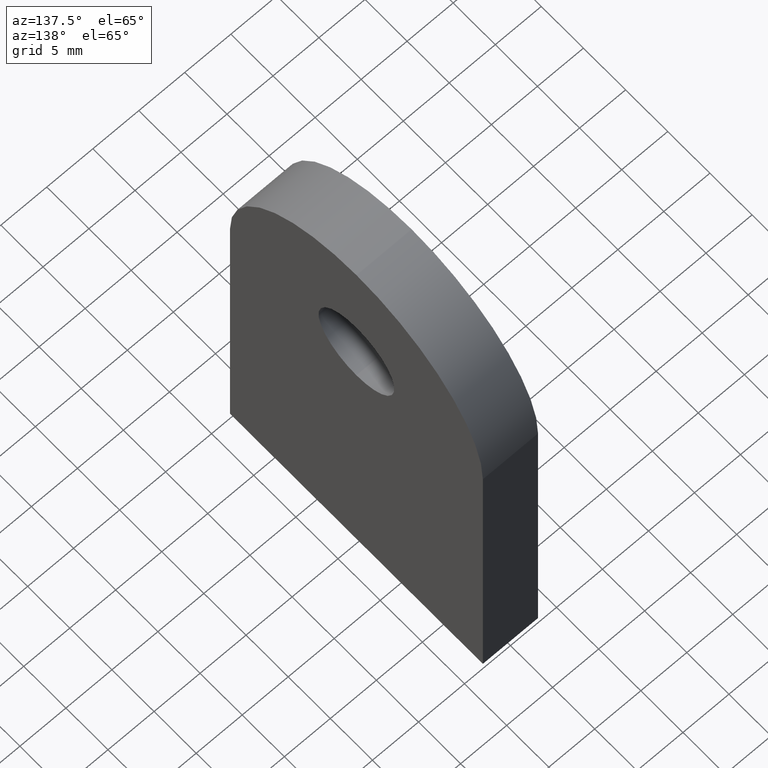
[diagram: clean part render]
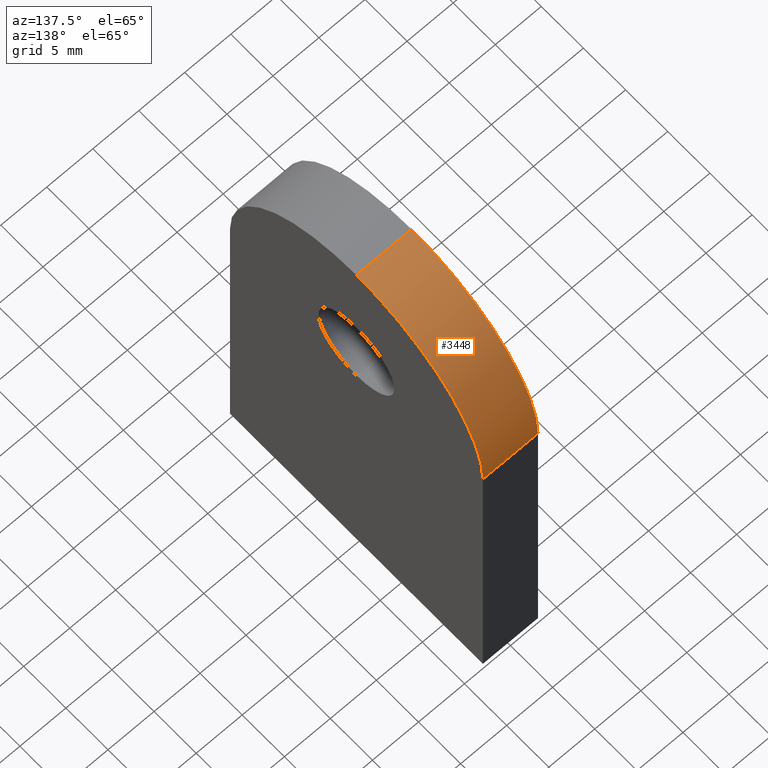
[diagram: same view with one face highlighted and labeled with its STEP entity id]
A machine part, auxiliary view. The second image highlights one B-rep face of the part: STEP entity #3448.
In plain terms, the highlighted cylindrical surface (partial cylindrical patch) has radius 15 mm, axis along (-1, -0, -0).
Its self-contained STEP definition (entity closure, byte-faithful):
#601 = CARTESIAN_POINT ( 'NONE',  ( 3.000000000000000000, 0.0000000000000000000, 34.99999999999999300 ) ) ;
#698 = EDGE_CURVE ( 'NONE', #5122, #6488, #5387, .T. ) ;
#755 = CARTESIAN_POINT ( 'NONE',  ( 3.000000000000000000, 0.0000000000000000000, 49.99999999999999300 ) ) ;
#897 = AXIS2_PLACEMENT_3D ( 'NONE', #601, #6294, #10172 ) ;
#1104 = ORIENTED_EDGE ( 'NONE', *, *, #6086, .F. ) ;
#1865 = CARTESIAN_POINT ( 'NONE',  ( 3.000000000000000000, 0.0000000000000000000, 49.99999999999999300 ) ) ;
#2830 = ORIENTED_EDGE ( 'NONE', *, *, #698, .F. ) ;
#2839 = CARTESIAN_POINT ( 'NONE',  ( 3.000000000000000000, 0.0000000000000000000, 34.99999999999999300 ) ) ;
#3149 = ORIENTED_EDGE ( 'NONE', *, *, #6523, .T. ) ;
#3448 = ADVANCED_FACE ( 'NONE', ( #8466 ), #9391, .T. ) ;
#3801 = DIRECTION ( 'NONE',  ( -1.000000000000000000, -0.0000000000000000000, -0.0000000000000000000 ) ) ;
#5122 = VERTEX_POINT ( 'NONE', #7254 ) ;
#5378 = LINE ( 'NONE', #8521, #7600 ) ;
#5387 = CIRCLE ( 'NONE', #10056, 15.00000000000000000 ) ;
#5763 = CIRCLE ( 'NONE', #7217, 15.00000000000000000 ) ;
#5773 = VECTOR ( 'NONE', #3801, 1000.000000000000000 ) ;
#5841 = DIRECTION ( 'NONE',  ( 0.0000000000000000000, 0.0000000000000000000, 1.000000000000000000 ) ) ;
#6086 = EDGE_CURVE ( 'NONE', #6719, #5122, #6507, .T. ) ;
#6294 = DIRECTION ( 'NONE',  ( -1.000000000000000000, -0.0000000000000000000, -0.0000000000000000000 ) ) ;
#6488 = VERTEX_POINT ( 'NONE', #6605 ) ;
#6507 = LINE ( 'NONE', #1865, #5773 ) ;
#6523 = EDGE_CURVE ( 'NONE', #6719, #11702, #5763, .T. ) ;
#6605 = CARTESIAN_POINT ( 'NONE',  ( -3.000000000000000000, 14.99999999999999800, 34.99999999999999300 ) ) ;
#6719 = VERTEX_POINT ( 'NONE', #755 ) ;
#7217 = AXIS2_PLACEMENT_3D ( 'NONE', #2839, #10518, #7775 ) ;
#7254 = CARTESIAN_POINT ( 'NONE',  ( -3.000000000000000000, 0.0000000000000000000, 49.99999999999999300 ) ) ;
#7600 = VECTOR ( 'NONE', #10385, 1000.000000000000000 ) ;
#7775 = DIRECTION ( 'NONE',  ( 0.0000000000000000000, 0.0000000000000000000, 1.000000000000000000 ) ) ;
#8466 = FACE_OUTER_BOUND ( 'NONE', #9035, .T. ) ;
#8521 = CARTESIAN_POINT ( 'NONE',  ( 3.000000000000000000, 14.99999999999999800, 34.99999999999999300 ) ) ;
#8584 = CARTESIAN_POINT ( 'NONE',  ( -3.000000000000000000, 0.0000000000000000000, 34.99999999999999300 ) ) ;
#9035 = EDGE_LOOP ( 'NONE', ( #1104, #3149, #11700, #2830 ) ) ;
#9391 = CYLINDRICAL_SURFACE ( 'NONE', #897, 15.00000000000000000 ) ;
#9527 = DIRECTION ( 'NONE',  ( -1.000000000000000000, -0.0000000000000000000, 0.0000000000000000000 ) ) ;
#10056 = AXIS2_PLACEMENT_3D ( 'NONE', #8584, #9527, #5841 ) ;
#10172 = DIRECTION ( 'NONE',  ( 0.0000000000000000000, 0.0000000000000000000, 1.000000000000000000 ) ) ;
#10385 = DIRECTION ( 'NONE',  ( -1.000000000000000000, -0.0000000000000000000, -0.0000000000000000000 ) ) ;
#10518 = DIRECTION ( 'NONE',  ( -1.000000000000000000, -0.0000000000000000000, 0.0000000000000000000 ) ) ;
#10859 = EDGE_CURVE ( 'NONE', #11702, #6488, #5378, .T. ) ;
#11261 = CARTESIAN_POINT ( 'NONE',  ( 3.000000000000000000, 14.99999999999999800, 34.99999999999999300 ) ) ;
#11700 = ORIENTED_EDGE ( 'NONE', *, *, #10859, .T. ) ;
#11702 = VERTEX_POINT ( 'NONE', #11261 ) ;